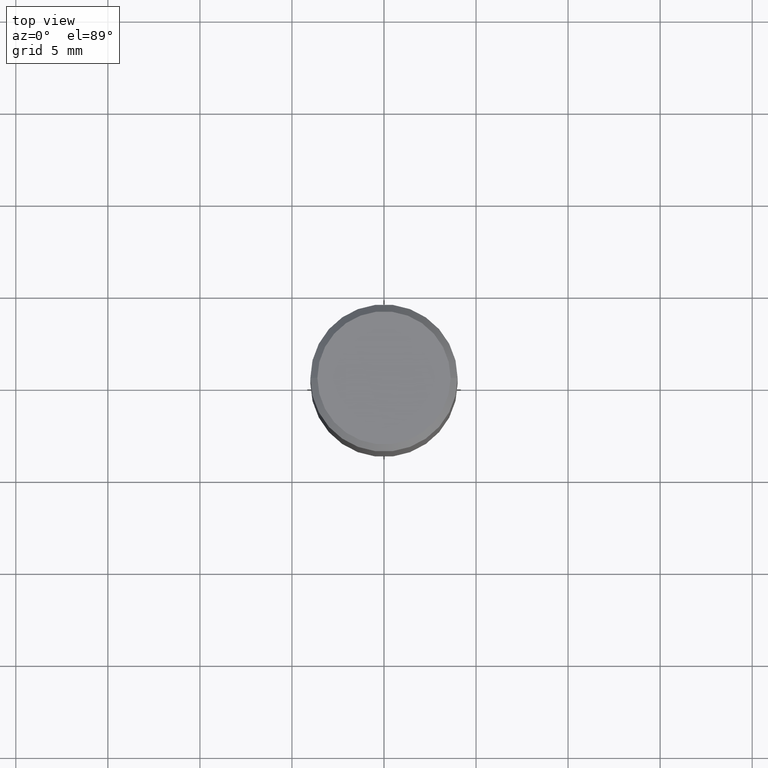
[diagram: clean part render]
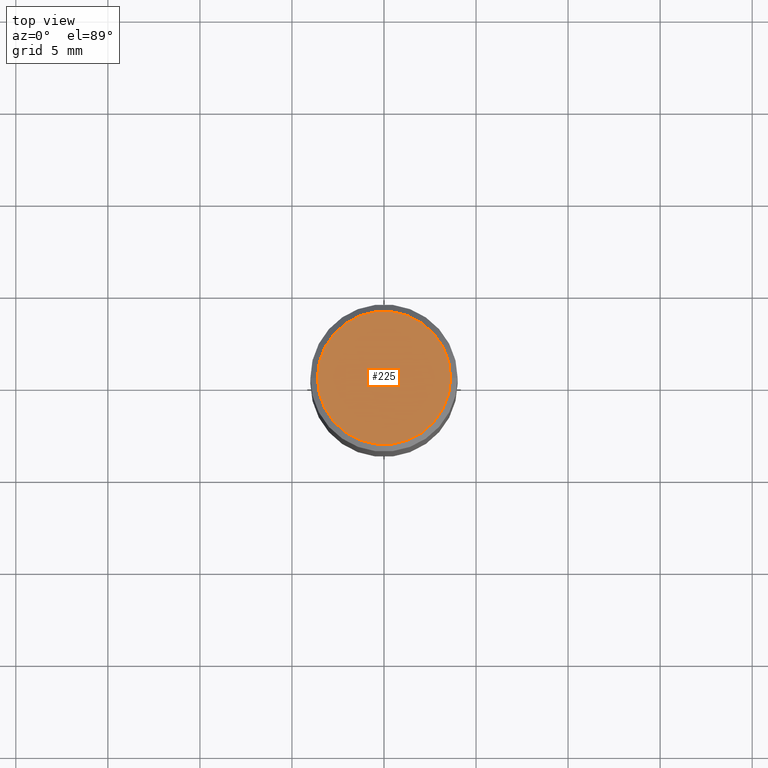
[diagram: same view with one face highlighted and labeled with its STEP entity id]
A machine part, top view. The second image highlights one B-rep face of the part: STEP entity #225.
In plain terms, the highlighted planar face has unit normal (0, -0, -1).
Its self-contained STEP definition (entity closure, byte-faithful):
#8 = ORIENTED_EDGE ( 'NONE', *, *, #14, .T. ) ;
#11 = DIRECTION ( 'NONE',  ( -2.445468806185136597E-29, 3.491481338843145583E-15, 1.000000000000000000 ) ) ;
#14 = EDGE_CURVE ( 'NONE', #442, #450, #117, .T. ) ;
#23 = CIRCLE ( 'NONE', #287, 0.1424999999999999878 ) ;
#51 = CARTESIAN_POINT ( 'NONE',  ( -0.1424999999999999878, 1.021258291611616073E-15, -2.213690298435961603E-16 ) ) ;
#56 = DIRECTION ( 'NONE',  ( 1.000000000000000000, -6.982962677686266711E-15, 4.874020801377837404E-29 ) ) ;
#117 = CIRCLE ( 'NONE', #381, 0.1424999999999999878 ) ;
#141 = EDGE_LOOP ( 'NONE', ( #8, #426 ) ) ;
#156 = CARTESIAN_POINT ( 'NONE',  ( 9.950721815702929274E-16, 0.1424999999999999878, -6.082206057069428675E-16 ) ) ;
#168 = CARTESIAN_POINT ( 'NONE',  ( 0.1424999999999999878, -1.055260809707053708E-15, -2.213690298435819608E-16 ) ) ;
#196 = DIRECTION ( 'NONE',  ( 1.000000000000000000, -6.982962677686266711E-15, 4.874020801377837404E-29 ) ) ;
#201 = DIRECTION ( 'NONE',  ( -1.000000000000000000, 6.982962677686265922E-15, -4.876176775795935793E-29 ) ) ;
#225 = ADVANCED_FACE ( 'NONE', ( #261 ), #399, .F. ) ;
#258 = AXIS2_PLACEMENT_3D ( 'NONE', #156, #431, #201 ) ;
#261 = FACE_OUTER_BOUND ( 'NONE', #141, .T. ) ;
#276 = CARTESIAN_POINT ( 'NONE',  ( 5.413510571379637089E-45, -7.729058366967027209E-31, -2.213690298435891099E-16 ) ) ;
#287 = AXIS2_PLACEMENT_3D ( 'NONE', #456, #11, #196 ) ;
#312 = EDGE_CURVE ( 'NONE', #450, #442, #23, .T. ) ;
#381 = AXIS2_PLACEMENT_3D ( 'NONE', #276, #416, #56 ) ;
#399 = PLANE ( 'NONE',  #258 ) ;
#416 = DIRECTION ( 'NONE',  ( -2.445468806185136597E-29, 3.491481338843145583E-15, 1.000000000000000000 ) ) ;
#426 = ORIENTED_EDGE ( 'NONE', *, *, #312, .T. ) ;
#431 = DIRECTION ( 'NONE',  ( 2.438088387897960049E-29, -3.491481338843145188E-15, -1.000000000000000000 ) ) ;
#442 = VERTEX_POINT ( 'NONE', #51 ) ;
#450 = VERTEX_POINT ( 'NONE', #168 ) ;
#456 = CARTESIAN_POINT ( 'NONE',  ( 5.413510571379637089E-45, -7.729058366967027209E-31, -2.213690298435891099E-16 ) ) ;